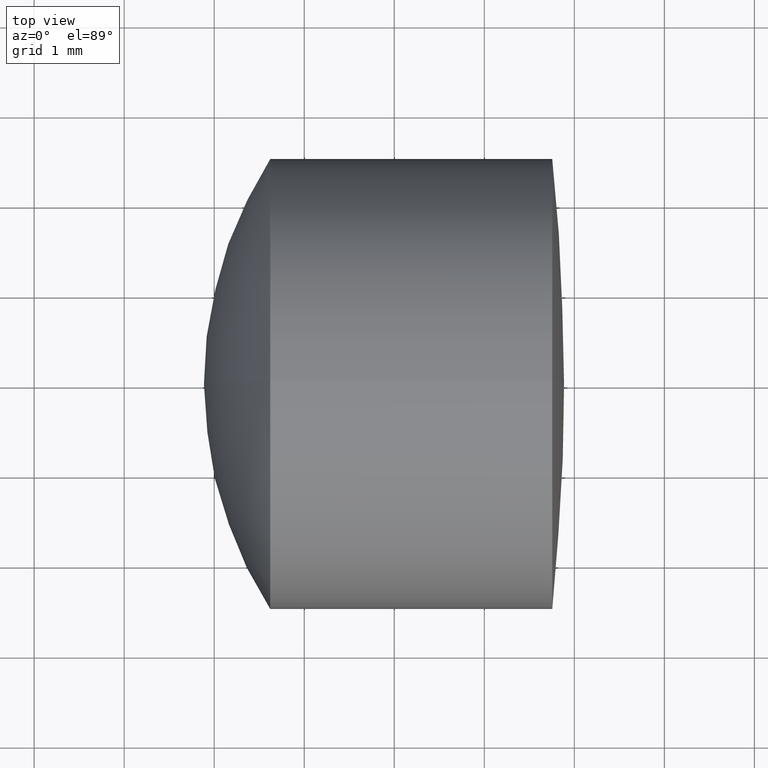
[diagram: clean part render]
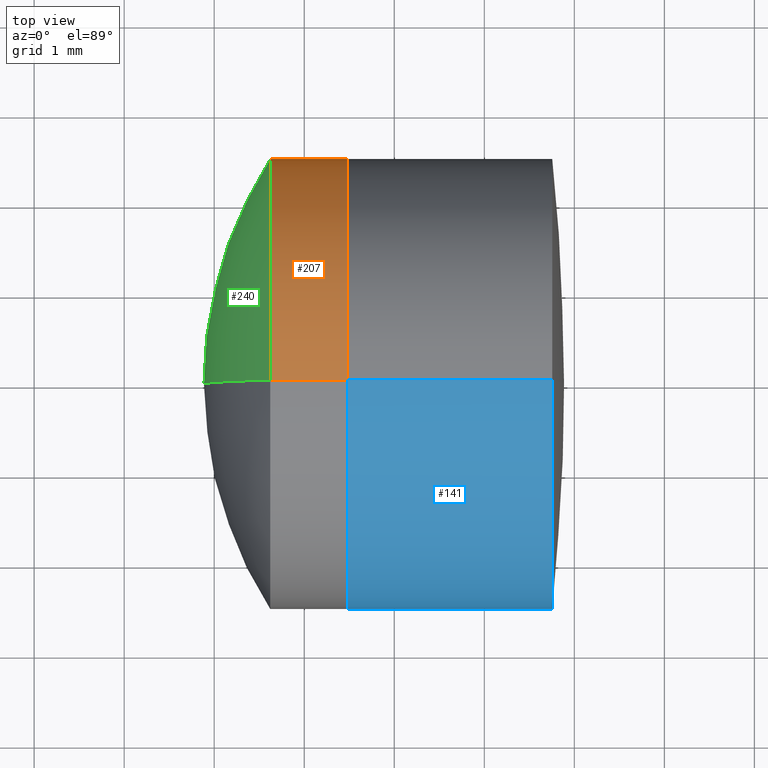
[diagram: same view with three faces highlighted in distinct colors, each labeled with its STEP entity id]
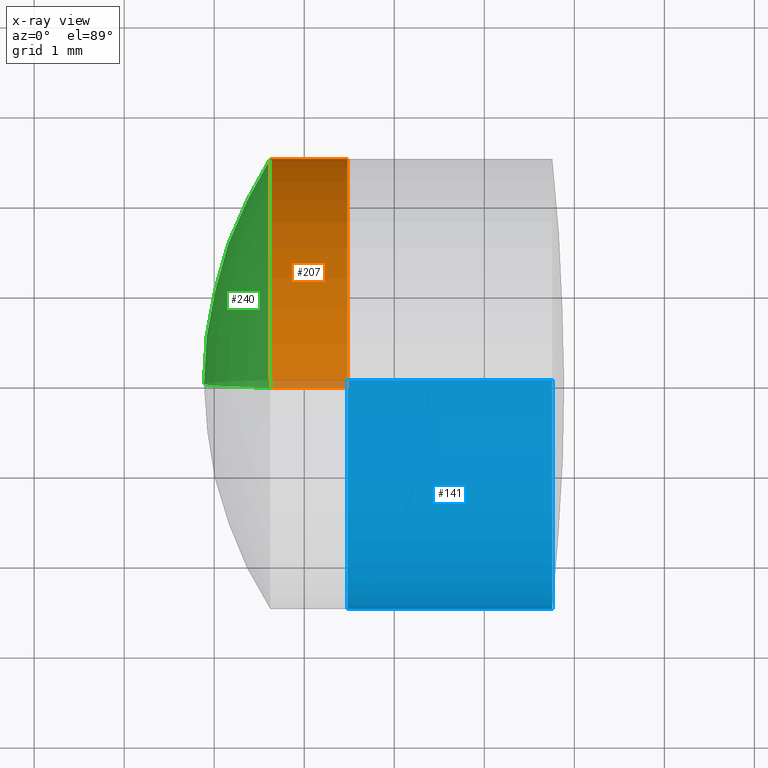
[diagram: x-ray of the same camera — body ghosted, the three highlighted faces saturated]
A machine part, top view with three faces highlighted in distinct colors.
The next image is the same camera in x-ray (body ghosted, the three faces saturated) — at least one of them is partly hidden behind the body in this view.
Their STEP definitions:

[orange] entity #207 — the highlighted cylindrical surface (partial cylindrical patch) has radius 2.5 mm, axis along (-1, -0, -0).
#19 = DIRECTION ( 'NONE',  ( 0.0000000000000000000, 0.0000000000000000000, 1.000000000000000000 ) ) ;
#27 = CARTESIAN_POINT ( 'NONE',  ( -0.8160621761658039000, 3.061616997868382600E-016, -2.499999999999999600 ) ) ;
#42 = ORIENTED_EDGE ( 'NONE', *, *, #123, .F. ) ;
#52 = VERTEX_POINT ( 'NONE', #168 ) ;
#63 = CARTESIAN_POINT ( 'NONE',  ( 1.479348394177700100, 0.0000000000000000000, 2.500000000000000000 ) ) ;
#64 = VERTEX_POINT ( 'NONE', #63 ) ;
#82 = VECTOR ( 'NONE', #305, 1000.000000000000000 ) ;
#84 = CARTESIAN_POINT ( 'NONE',  ( -0.8160621761658039000, 0.0000000000000000000, 0.0000000000000000000 ) ) ;
#90 = CARTESIAN_POINT ( 'NONE',  ( 0.6227680392050400900, 0.0000000000000000000, -2.499999999999999600 ) ) ;
#115 = ORIENTED_EDGE ( 'NONE', *, *, #337, .T. ) ;
#123 = EDGE_CURVE ( 'NONE', #232, #171, #259, .T. ) ;
#136 = DIRECTION ( 'NONE',  ( 0.0000000000000000000, 0.0000000000000000000, 1.000000000000000000 ) ) ;
#140 = CARTESIAN_POINT ( 'NONE',  ( 0.6227680392050400900, -3.061616997868382600E-016, 2.499999999999999600 ) ) ;
#148 = CARTESIAN_POINT ( 'NONE',  ( -0.8160621761658039000, 0.0000000000000000000, 2.499999999999999600 ) ) ;
#168 = CARTESIAN_POINT ( 'NONE',  ( 1.479348394177700100, 3.061616997868383100E-016, -2.500000000000000000 ) ) ;
#171 = VERTEX_POINT ( 'NONE', #90 ) ;
#180 = DIRECTION ( 'NONE',  ( -1.000000000000000000, -0.0000000000000000000, -0.0000000000000000000 ) ) ;
#187 = VECTOR ( 'NONE', #180, 1000.000000000000000 ) ;
#207 = ADVANCED_FACE ( 'NONE', ( #278 ), #312, .T. ) ;
#214 = EDGE_CURVE ( 'NONE', #64, #52, #300, .T. ) ;
#220 = DIRECTION ( 'NONE',  ( -1.000000000000000000, -0.0000000000000000000, -0.0000000000000000000 ) ) ;
#223 = DIRECTION ( 'NONE',  ( -1.000000000000000000, -0.0000000000000000000, -0.0000000000000000000 ) ) ;
#232 = VERTEX_POINT ( 'NONE', #140 ) ;
#235 = DIRECTION ( 'NONE',  ( 0.0000000000000000000, 0.0000000000000000000, 1.000000000000000000 ) ) ;
#236 = CARTESIAN_POINT ( 'NONE',  ( 0.6227680392050399800, 0.0000000000000000000, 0.0000000000000000000 ) ) ;
#256 = DIRECTION ( 'NONE',  ( -1.000000000000000000, -0.0000000000000000000, -0.0000000000000000000 ) ) ;
#259 = CIRCLE ( 'NONE', #288, 2.499999999999999600 ) ;
#260 = LINE ( 'NONE', #27, #187 ) ;
#261 = EDGE_CURVE ( 'NONE', #64, #232, #274, .T. ) ;
#266 = CARTESIAN_POINT ( 'NONE',  ( 1.479348394177700100, 0.0000000000000000000, 0.0000000000000000000 ) ) ;
#267 = AXIS2_PLACEMENT_3D ( 'NONE', #266, #256, #19 ) ;
#274 = LINE ( 'NONE', #148, #82 ) ;
#278 = FACE_OUTER_BOUND ( 'NONE', #310, .T. ) ;
#288 = AXIS2_PLACEMENT_3D ( 'NONE', #236, #220, #235 ) ;
#294 = ORIENTED_EDGE ( 'NONE', *, *, #261, .F. ) ;
#300 = CIRCLE ( 'NONE', #267, 2.500000000000000000 ) ;
#305 = DIRECTION ( 'NONE',  ( -1.000000000000000000, -0.0000000000000000000, -0.0000000000000000000 ) ) ;
#310 = EDGE_LOOP ( 'NONE', ( #344, #115, #42, #294 ) ) ;
#312 = CYLINDRICAL_SURFACE ( 'NONE', #341, 2.499999999999999600 ) ;
#337 = EDGE_CURVE ( 'NONE', #52, #171, #260, .T. ) ;
#341 = AXIS2_PLACEMENT_3D ( 'NONE', #84, #223, #136 ) ;
#344 = ORIENTED_EDGE ( 'NONE', *, *, #214, .T. ) ;

[blue] entity #141 — the highlighted cylindrical surface (partial cylindrical patch) has radius 2.5 mm, axis along (-1, -0, -0).
#2 = DIRECTION ( 'NONE',  ( 0.0000000000000000000, 0.0000000000000000000, 1.000000000000000000 ) ) ;
#8 = EDGE_CURVE ( 'NONE', #176, #46, #163, .T. ) ;
#11 = CARTESIAN_POINT ( 'NONE',  ( 1.479348394177701900, 0.0000000000000000000, -2.499999999999998200 ) ) ;
#18 = CARTESIAN_POINT ( 'NONE',  ( 3.754799295365029100, -3.061616997868377200E-016, 2.499999999999995100 ) ) ;
#24 = CARTESIAN_POINT ( 'NONE',  ( 1.479348394177702400, 0.0000000000000000000, 0.0000000000000000000 ) ) ;
#32 = VERTEX_POINT ( 'NONE', #18 ) ;
#39 = EDGE_LOOP ( 'NONE', ( #250, #200, #95, #54 ) ) ;
#46 = VERTEX_POINT ( 'NONE', #212 ) ;
#54 = ORIENTED_EDGE ( 'NONE', *, *, #8, .F. ) ;
#56 = EDGE_CURVE ( 'NONE', #32, #46, #226, .T. ) ;
#62 = EDGE_CURVE ( 'NONE', #287, #32, #333, .T. ) ;
#67 = CARTESIAN_POINT ( 'NONE',  ( -0.5519199926577972300, 0.0000000000000000000, 0.0000000000000000000 ) ) ;
#78 = CARTESIAN_POINT ( 'NONE',  ( 3.754799295365029100, 0.0000000000000000000, -2.499999999999995100 ) ) ;
#95 = ORIENTED_EDGE ( 'NONE', *, *, #56, .T. ) ;
#119 = FACE_OUTER_BOUND ( 'NONE', #39, .T. ) ;
#126 = DIRECTION ( 'NONE',  ( -1.000000000000000000, -0.0000000000000000000, -0.0000000000000000000 ) ) ;
#129 = VECTOR ( 'NONE', #137, 1000.000000000000000 ) ;
#137 = DIRECTION ( 'NONE',  ( -1.000000000000000000, -0.0000000000000000000, -0.0000000000000000000 ) ) ;
#138 = DIRECTION ( 'NONE',  ( 0.0000000000000000000, 0.0000000000000000000, 1.000000000000000000 ) ) ;
#141 = ADVANCED_FACE ( 'NONE', ( #119 ), #252, .T. ) ;
#163 = CIRCLE ( 'NONE', #318, 2.499999999999998200 ) ;
#169 = CARTESIAN_POINT ( 'NONE',  ( 3.754799295365026900, 0.0000000000000000000, 0.0000000000000000000 ) ) ;
#176 = VERTEX_POINT ( 'NONE', #11 ) ;
#183 = AXIS2_PLACEMENT_3D ( 'NONE', #67, #194, #2 ) ;
#194 = DIRECTION ( 'NONE',  ( -1.000000000000000000, -0.0000000000000000000, -0.0000000000000000000 ) ) ;
#197 = DIRECTION ( 'NONE',  ( -1.000000000000000000, -0.0000000000000000000, -0.0000000000000000000 ) ) ;
#200 = ORIENTED_EDGE ( 'NONE', *, *, #62, .T. ) ;
#203 = EDGE_CURVE ( 'NONE', #287, #176, #239, .T. ) ;
#212 = CARTESIAN_POINT ( 'NONE',  ( 1.479348394177701900, -3.061616997868381200E-016, 2.499999999999998200 ) ) ;
#225 = DIRECTION ( 'NONE',  ( -1.000000000000000000, -0.0000000000000000000, -0.0000000000000000000 ) ) ;
#226 = LINE ( 'NONE', #279, #230 ) ;
#230 = VECTOR ( 'NONE', #197, 1000.000000000000000 ) ;
#239 = LINE ( 'NONE', #290, #129 ) ;
#250 = ORIENTED_EDGE ( 'NONE', *, *, #203, .F. ) ;
#252 = CYLINDRICAL_SURFACE ( 'NONE', #183, 2.499999999999997800 ) ;
#273 = DIRECTION ( 'NONE',  ( 0.0000000000000000000, 0.0000000000000000000, 1.000000000000000000 ) ) ;
#279 = CARTESIAN_POINT ( 'NONE',  ( -0.5519199926577972300, 0.0000000000000000000, 2.499999999999997800 ) ) ;
#287 = VERTEX_POINT ( 'NONE', #78 ) ;
#290 = CARTESIAN_POINT ( 'NONE',  ( -0.5519199926577972300, 3.061616997868380700E-016, -2.499999999999997800 ) ) ;
#318 = AXIS2_PLACEMENT_3D ( 'NONE', #24, #126, #273 ) ;
#319 = AXIS2_PLACEMENT_3D ( 'NONE', #169, #225, #138 ) ;
#333 = CIRCLE ( 'NONE', #319, 2.499999999999997800 ) ;

[green] entity #240 — the highlighted spherical surface has radius 4.61 mm.
#17 = CARTESIAN_POINT ( 'NONE',  ( 4.496022484758546200, 0.0000000000000000000, 3.707415142945429000E-030 ) ) ;
#34 = DIRECTION ( 'NONE',  ( 0.0000000000000000000, 0.0000000000000000000, -1.000000000000000000 ) ) ;
#53 = CIRCLE ( 'NONE', #135, 4.609999999999999400 ) ;
#59 = VERTEX_POINT ( 'NONE', #161 ) ;
#79 = SPHERICAL_SURFACE ( 'NONE', #173, 4.609999999999999400 ) ;
#90 = CARTESIAN_POINT ( 'NONE',  ( 0.6227680392050400900, 0.0000000000000000000, -2.499999999999999600 ) ) ;
#94 = CARTESIAN_POINT ( 'NONE',  ( 4.496022484758546200, 0.0000000000000000000, 3.707415142945429000E-030 ) ) ;
#104 = DIRECTION ( 'NONE',  ( -0.0000000000000000000, -1.000000000000000000, -0.0000000000000000000 ) ) ;
#111 = EDGE_LOOP ( 'NONE', ( #317, #276, #340 ) ) ;
#116 = EDGE_CURVE ( 'NONE', #232, #59, #53, .T. ) ;
#123 = EDGE_CURVE ( 'NONE', #232, #171, #259, .T. ) ;
#135 = AXIS2_PLACEMENT_3D ( 'NONE', #17, #186, #221 ) ;
#140 = CARTESIAN_POINT ( 'NONE',  ( 0.6227680392050400900, -3.061616997868382600E-016, 2.499999999999999600 ) ) ;
#147 = CIRCLE ( 'NONE', #325, 4.609999999999999400 ) ;
#161 = CARTESIAN_POINT ( 'NONE',  ( -0.1139775152414531500, 0.0000000000000000000, -2.822810872034612000E-016 ) ) ;
#171 = VERTEX_POINT ( 'NONE', #90 ) ;
#173 = AXIS2_PLACEMENT_3D ( 'NONE', #329, #104, #34 ) ;
#186 = DIRECTION ( 'NONE',  ( 0.0000000000000000000, -1.000000000000000000, -1.224646799147353200E-016 ) ) ;
#220 = DIRECTION ( 'NONE',  ( -1.000000000000000000, -0.0000000000000000000, -0.0000000000000000000 ) ) ;
#221 = DIRECTION ( 'NONE',  ( 0.0000000000000000000, 1.224646799147353200E-016, -1.000000000000000000 ) ) ;
#224 = FACE_OUTER_BOUND ( 'NONE', #111, .T. ) ;
#232 = VERTEX_POINT ( 'NONE', #140 ) ;
#235 = DIRECTION ( 'NONE',  ( 0.0000000000000000000, 0.0000000000000000000, 1.000000000000000000 ) ) ;
#236 = CARTESIAN_POINT ( 'NONE',  ( 0.6227680392050399800, 0.0000000000000000000, 0.0000000000000000000 ) ) ;
#240 = ADVANCED_FACE ( 'NONE', ( #224 ), #79, .T. ) ;
#259 = CIRCLE ( 'NONE', #288, 2.499999999999999600 ) ;
#276 = ORIENTED_EDGE ( 'NONE', *, *, #123, .T. ) ;
#280 = EDGE_CURVE ( 'NONE', #171, #59, #147, .T. ) ;
#288 = AXIS2_PLACEMENT_3D ( 'NONE', #236, #220, #235 ) ;
#297 = DIRECTION ( 'NONE',  ( 0.0000000000000000000, 1.000000000000000000, -0.0000000000000000000 ) ) ;
#317 = ORIENTED_EDGE ( 'NONE', *, *, #116, .F. ) ;
#325 = AXIS2_PLACEMENT_3D ( 'NONE', #94, #297, #343 ) ;
#329 = CARTESIAN_POINT ( 'NONE',  ( 4.496022484758546200, 0.0000000000000000000, 3.707415142945429000E-030 ) ) ;
#340 = ORIENTED_EDGE ( 'NONE', *, *, #280, .T. ) ;
#343 = DIRECTION ( 'NONE',  ( 0.0000000000000000000, 0.0000000000000000000, 1.000000000000000000 ) ) ;